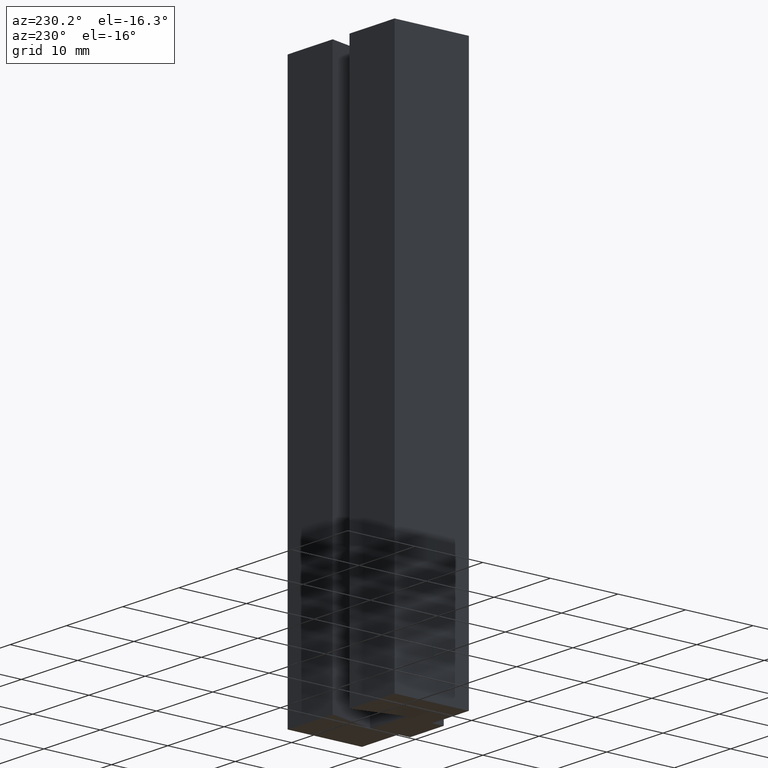
[diagram: clean part render]
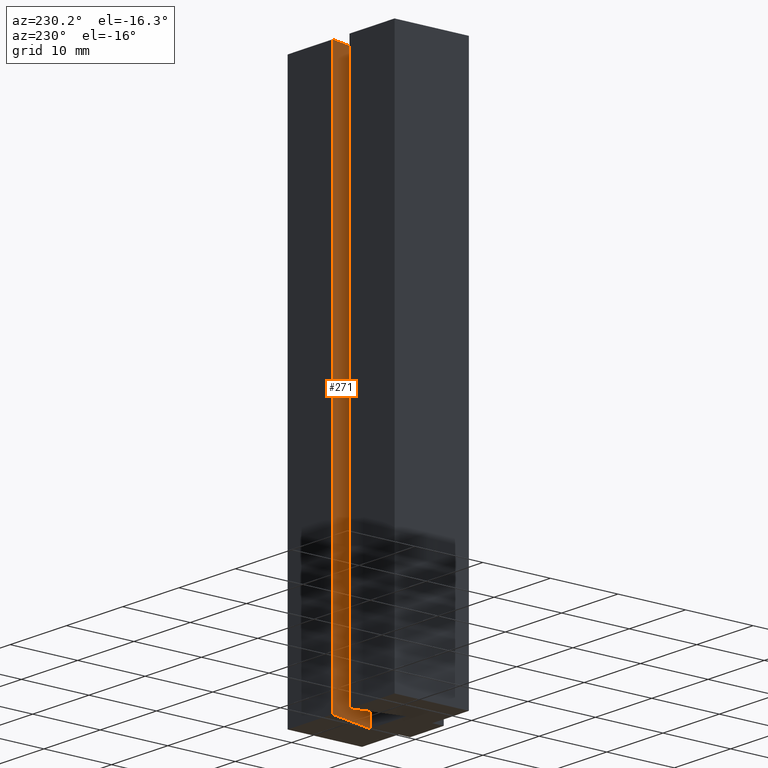
[diagram: same view with one face highlighted and labeled with its STEP entity id]
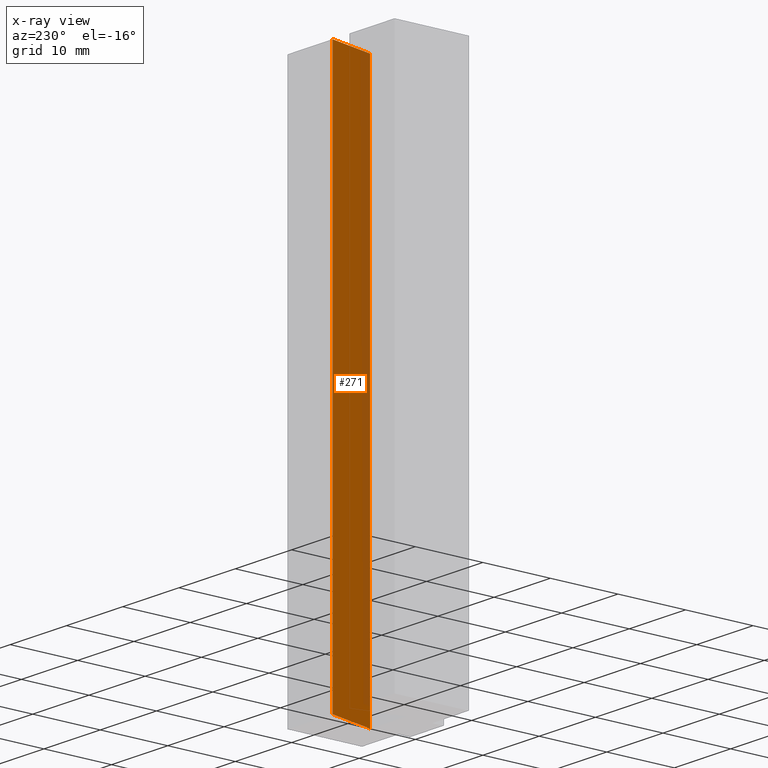
[diagram: x-ray of the same camera — body ghosted, the highlighted face saturated]
A machine part, auxiliary view. The second image highlights one B-rep face of the part: STEP entity #271.
The next image is the same camera in x-ray: the body ghosted, the highlighted face saturated — about 21% of this face is hidden behind the body in this view.
In plain terms, the highlighted planar face has unit normal (-0.9701, -0.2425, 0).
Its self-contained STEP definition (entity closure, byte-faithful):
#25=FACE_OUTER_BOUND('',#39,.T.);
#39=EDGE_LOOP('',(#220,#221,#222,#223));
#54=LINE('',#403,#90);
#72=LINE('',#438,#108);
#73=LINE('',#441,#109);
#74=LINE('',#442,#110);
#90=VECTOR('',#327,10.);
#108=VECTOR('',#361,10.);
#109=VECTOR('',#364,10.);
#110=VECTOR('',#365,10.);
#126=VERTEX_POINT('',#400);
#127=VERTEX_POINT('',#402);
#136=VERTEX_POINT('',#436);
#137=VERTEX_POINT('',#440);
#150=EDGE_CURVE('',#127,#126,#54,.T.);
#168=EDGE_CURVE('',#136,#126,#72,.T.);
#169=EDGE_CURVE('',#136,#137,#73,.T.);
#170=EDGE_CURVE('',#137,#127,#74,.T.);
#220=ORIENTED_EDGE('',*,*,#169,.T.);
#221=ORIENTED_EDGE('',*,*,#170,.T.);
#222=ORIENTED_EDGE('',*,*,#150,.T.);
#223=ORIENTED_EDGE('',*,*,#168,.F.);
#257=PLANE('',#308);
#271=ADVANCED_FACE('',(#25),#257,.T.);
#308=AXIS2_PLACEMENT_3D('',#439,#362,#363);
#327=DIRECTION('',(0.242535625036333,-0.970142500145332,0.));
#361=DIRECTION('',(0.,0.,-1.));
#362=DIRECTION('center_axis',(-0.970142500145332,-0.242535625036333,0.));
#363=DIRECTION('ref_axis',(0.,0.,1.));
#364=DIRECTION('',(-0.242535625036333,0.970142500145332,0.));
#365=DIRECTION('',(0.,0.,-1.));
#400=CARTESIAN_POINT('',(3.25,4.,-40.));
#402=CARTESIAN_POINT('',(1.5,11.,-40.));
#403=CARTESIAN_POINT('',(3.25,4.,-40.));
#436=CARTESIAN_POINT('',(3.25,4.,40.));
#438=CARTESIAN_POINT('',(3.25,4.,0.));
#439=CARTESIAN_POINT('Origin',(3.25,4.,0.));
#440=CARTESIAN_POINT('',(1.5,11.,40.));
#441=CARTESIAN_POINT('',(3.25,4.,40.));
#442=CARTESIAN_POINT('',(1.5,11.,0.));